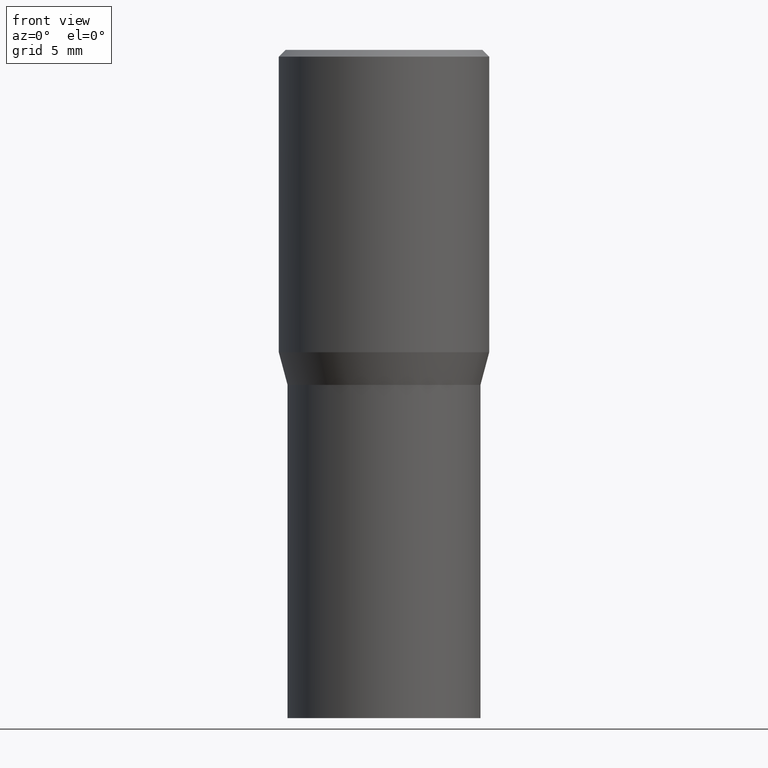
[diagram: clean part render]
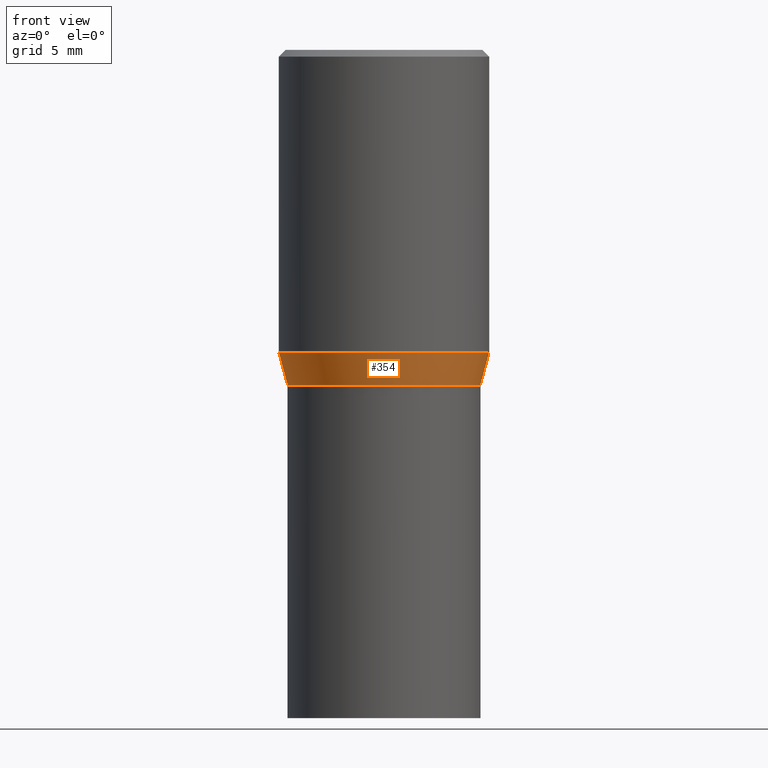
[diagram: same view with one face highlighted and labeled with its STEP entity id]
A machine part, front view. The second image highlights one B-rep face of the part: STEP entity #354.
In plain terms, the highlighted conical surface has half-angle 15 deg.
Its self-contained STEP definition (entity closure, byte-faithful):
#50 = AXIS2_PLACEMENT_3D ( 'NONE', #56, #297, #123 ) ;
#55 = VERTEX_POINT ( 'NONE', #366 ) ;
#56 = CARTESIAN_POINT ( 'NONE',  ( 1.838992542251222813E-29, -2.625593966810045497E-15, -0.7520000000000001128 ) ) ;
#58 = DIRECTION ( 'NONE',  ( -2.445468806185136597E-29, 3.491481338843145583E-15, 1.000000000000000000 ) ) ;
#70 = AXIS2_PLACEMENT_3D ( 'NONE', #164, #387, #419 ) ;
#109 = ORIENTED_EDGE ( 'NONE', *, *, #185, .T. ) ;
#123 = DIRECTION ( 'NONE',  ( 1.000000000000000000, -6.982962677686266711E-15, 0.000000000000000000 ) ) ;
#147 = LINE ( 'NONE', #218, #382 ) ;
#163 = CONICAL_SURFACE ( 'NONE', #277, 0.2165500000000000203, 0.2617993877991505736 ) ;
#164 = CARTESIAN_POINT ( 'NONE',  ( 1.659654580432621677E-29, -2.369546886817807077E-15, -0.6786652016312719748 ) ) ;
#173 = ORIENTED_EDGE ( 'NONE', *, *, #268, .T. ) ;
#176 = EDGE_CURVE ( 'NONE', #322, #240, #401, .T. ) ;
#185 = EDGE_CURVE ( 'NONE', #280, #55, #147, .T. ) ;
#186 = CARTESIAN_POINT ( 'NONE',  ( 0.2165500000000000203, -4.137754534663007109E-15, -0.7520000000000001128 ) ) ;
#193 = ORIENTED_EDGE ( 'NONE', *, *, #442, .F. ) ;
#215 = CIRCLE ( 'NONE', #70, 0.2361999999999999933 ) ;
#218 = CARTESIAN_POINT ( 'NONE',  ( 0.2165500000000000203, -4.137754534663007109E-15, -0.7520000000000001128 ) ) ;
#240 = VERTEX_POINT ( 'NONE', #299 ) ;
#245 = CARTESIAN_POINT ( 'NONE',  ( -0.2165500000000000203, -1.086913672521548598E-15, -0.7520000000000001128 ) ) ;
#250 = EDGE_LOOP ( 'NONE', ( #265, #173, #109, #193 ) ) ;
#265 = ORIENTED_EDGE ( 'NONE', *, *, #176, .F. ) ;
#268 = EDGE_CURVE ( 'NONE', #322, #280, #409, .T. ) ;
#277 = AXIS2_PLACEMENT_3D ( 'NONE', #301, #58, #337 ) ;
#280 = VERTEX_POINT ( 'NONE', #186 ) ;
#297 = DIRECTION ( 'NONE',  ( -2.445468806185136597E-29, 3.491481338843145583E-15, 1.000000000000000000 ) ) ;
#299 = CARTESIAN_POINT ( 'NONE',  ( -0.2361999999999999933, -6.912449449524502887E-16, -0.6786652016312719748 ) ) ;
#301 = CARTESIAN_POINT ( 'NONE',  ( 1.838992542251222813E-29, -2.625593966810045497E-15, -0.7520000000000001128 ) ) ;
#315 = DIRECTION ( 'NONE',  ( -0.2588190451025218497, 5.211531920934553408E-15, 0.9659258262890679791 ) ) ;
#320 = VECTOR ( 'NONE', #315, 39.37007874015748143 ) ;
#322 = VERTEX_POINT ( 'NONE', #332 ) ;
#332 = CARTESIAN_POINT ( 'NONE',  ( -0.2165500000000000203, -8.890793087369993447E-16, -0.7520000000000001128 ) ) ;
#337 = DIRECTION ( 'NONE',  ( 1.000000000000000000, -6.982962677686266711E-15, 0.000000000000000000 ) ) ;
#354 = ADVANCED_FACE ( 'NONE', ( #410 ), #163, .T. ) ;
#366 = CARTESIAN_POINT ( 'NONE',  ( 0.2361999999999999933, -4.018922671287303208E-15, -0.6786652016312719748 ) ) ;
#382 = VECTOR ( 'NONE', #393, 39.37007874015748143 ) ;
#387 = DIRECTION ( 'NONE',  ( -2.445468806185136597E-29, 3.491481338843145583E-15, 1.000000000000000000 ) ) ;
#393 = DIRECTION ( 'NONE',  ( 0.2588190451025218497, 1.565188264969618221E-15, 0.9659258262890679791 ) ) ;
#401 = LINE ( 'NONE', #245, #320 ) ;
#409 = CIRCLE ( 'NONE', #50, 0.2165500000000000203 ) ;
#410 = FACE_OUTER_BOUND ( 'NONE', #250, .T. ) ;
#419 = DIRECTION ( 'NONE',  ( 1.000000000000000000, -6.982962677686266711E-15, 0.000000000000000000 ) ) ;
#442 = EDGE_CURVE ( 'NONE', #240, #55, #215, .T. ) ;